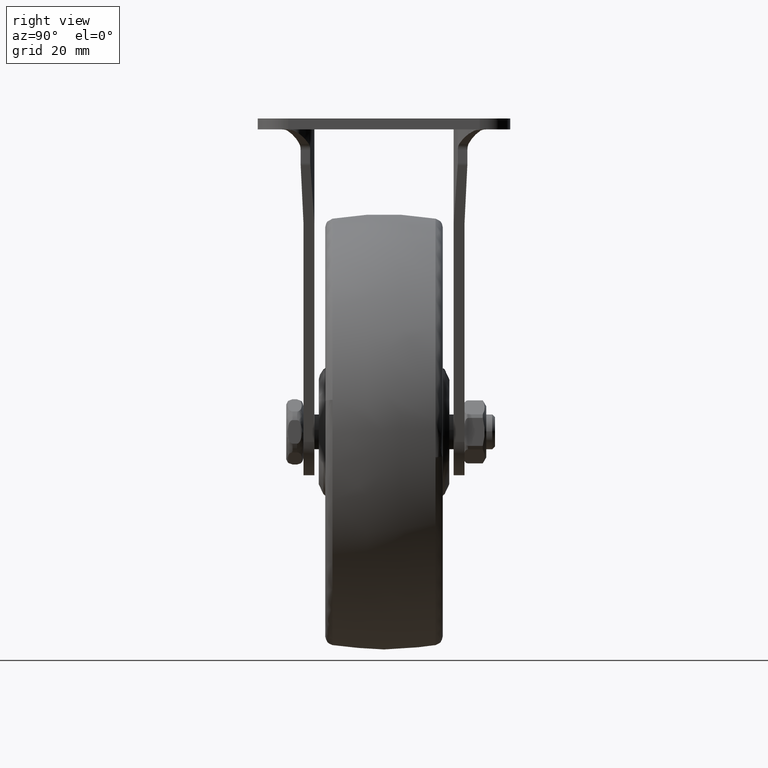
[diagram: clean part render]
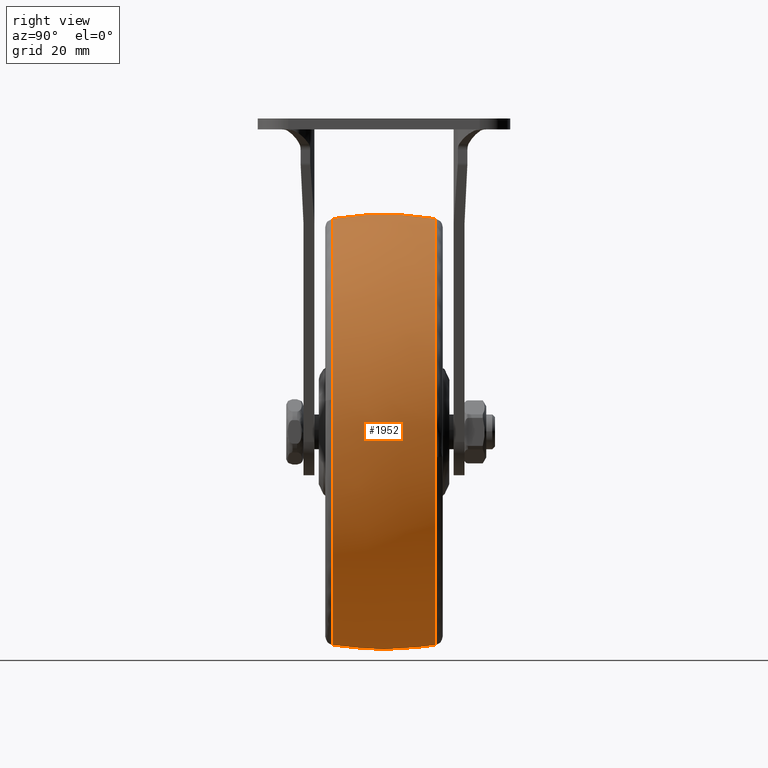
[diagram: same view with one face highlighted and labeled with its STEP entity id]
A machine part, right view. The second image highlights one B-rep face of the part: STEP entity #1952.
In plain terms, the highlighted face is a freeform B-spline surface patch.
Its self-contained STEP definition (entity closure, byte-faithful):
#1318=CARTESIAN_POINT('',(0.0,11.838203603458821,48.991714303276893));
#1319=VERTEX_POINT('',#1318);
#1333=CARTESIAN_POINT('',(48.646940888964309,11.838221536022481,-5.801945053575222));
#1334=VERTEX_POINT('',#1333);
#1335=CARTESIAN_POINT('',(48.646940888964309,11.838221536022479,-5.801945053575222));
#1336=CARTESIAN_POINT('',(48.991708058477606,11.838220596109956,-2.911214207508901));
#1337=CARTESIAN_POINT('',(48.991708018529650,11.838219648802690,0.000003625570847));
#1338=CARTESIAN_POINT('',(48.991707346261542,11.838203706950834,48.991714232092349));
#1339=CARTESIAN_POINT('',(0.0,11.838203603458821,48.991714303276893));
#1347=(BOUNDED_CURVE()B_SPLINE_CURVE(2,(#1335,#1336,#1337,#1338,#1339),.UNSPECIFIED.,.F.,.U.)B_SPLINE_CURVE_WITH_KNOTS((3,2,3),(0.229495605025618,0.250000000000000,0.500000000000000),.UNSPECIFIED.)CURVE()GEOMETRIC_REPRESENTATION_ITEM()RATIONAL_B_SPLINE_CURVE((0.955895731119439,0.975977607024523,1.0,0.707106781186548,1.0))REPRESENTATION_ITEM(''));
#1348=EDGE_CURVE('',#1334,#1319,#1347,.T.);
#1411=CARTESIAN_POINT('',(0.0,11.838235254025300,-48.991706749408102));
#1412=VERTEX_POINT('',#1411);
#1413=CARTESIAN_POINT('',(0.0,11.838235254025300,-48.991706749408102));
#1414=CARTESIAN_POINT('',(43.495850650208517,11.838235370593900,-48.991706829587073));
#1415=CARTESIAN_POINT('',(48.646940888964309,11.838221536022479,-5.801945053575222));
#1423=(BOUNDED_CURVE()B_SPLINE_CURVE(2,(#1413,#1414,#1415),.UNSPECIFIED.,.F.,.U.)B_SPLINE_CURVE_WITH_KNOTS((3,3),(0.0,0.229495605025618),.UNSPECIFIED.)CURVE()GEOMETRIC_REPRESENTATION_ITEM()RATIONAL_B_SPLINE_CURVE((1.0,0.731129174162024,0.955895731119439))REPRESENTATION_ITEM(''));
#1424=EDGE_CURVE('',#1412,#1334,#1423,.T.);
#1426=CARTESIAN_POINT('',(-48.664040279431163,11.838207804842760,5.656782072754959));
#1427=VERTEX_POINT('',#1426);
#1428=CARTESIAN_POINT('',(-48.664040279431170,11.838207804842767,5.656782072754959));
#1429=CARTESIAN_POINT('',(-48.991713361614877,11.838208512790150,2.837881768906301));
#1430=CARTESIAN_POINT('',(-48.991713165036387,11.838209307797291,0.000000745762402));
#1431=CARTESIAN_POINT('',(-48.991709771407216,11.838223032388560,-48.991706398126325));
#1432=CARTESIAN_POINT('',(0.0,11.838235254025300,-48.991706749408102));
#1440=(BOUNDED_CURVE()B_SPLINE_CURVE(2,(#1428,#1429,#1430,#1431,#1432),.UNSPECIFIED.,.F.,.U.)B_SPLINE_CURVE_WITH_KNOTS((3,2,3),(0.730000029126776,0.750000000000000,1.0),.UNSPECIFIED.)CURVE()GEOMETRIC_REPRESENTATION_ITEM()RATIONAL_B_SPLINE_CURVE((0.956886175519225,0.976568576619065,1.0,0.707106781186548,1.0))REPRESENTATION_ITEM(''));
#1441=EDGE_CURVE('',#1427,#1412,#1440,.T.);
#1492=CARTESIAN_POINT('',(12.903178560795300,-11.838233268654760,-47.261988427029607));
#1493=VERTEX_POINT('',#1492);
#1494=CARTESIAN_POINT('',(48.435739606254138,-11.838224634756500,7.359808502445123));
#1495=VERTEX_POINT('',#1494);
#1496=CARTESIAN_POINT('',(12.903178560795300,-11.838233268654761,-47.261988427029607));
#1497=CARTESIAN_POINT('',(48.991710322163286,-11.838231736516008,-37.409319121136342));
#1498=CARTESIAN_POINT('',(48.991709900268219,-11.838225802643230,0.000001324915156));
#1499=CARTESIAN_POINT('',(48.991709858530143,-11.838225215605362,3.700904295788137));
#1500=CARTESIAN_POINT('',(48.435739606254138,-11.838224634756500,7.359808502445124));
#1508=(BOUNDED_CURVE()B_SPLINE_CURVE(2,(#1496,#1497,#1498,#1499,#1500),.UNSPECIFIED.,.F.,.U.)B_SPLINE_CURVE_WITH_KNOTS((3,2,3),(0.044901926709365,0.250000000000000,0.275897579407143),.UNSPECIFIED.)CURVE()GEOMETRIC_REPRESENTATION_ITEM()RATIONAL_B_SPLINE_CURVE((0.913685083964325,0.759712660565874,1.0,0.969659098431859,0.945604244124881))REPRESENTATION_ITEM(''));
#1509=EDGE_CURVE('',#1493,#1495,#1508,.T.);
#1594=CARTESIAN_POINT('',(0.0,-11.838233890880700,-48.991711229283297));
#1595=VERTEX_POINT('',#1594);
#1596=CARTESIAN_POINT('',(0.0,-11.838233890880700,-48.991711229283297));
#1597=CARTESIAN_POINT('',(6.567527145614857,-11.838233718082767,-48.991710256361529));
#1598=CARTESIAN_POINT('',(12.903178560795300,-11.838233268654761,-47.261988427029607));
#1606=(BOUNDED_CURVE()B_SPLINE_CURVE(2,(#1596,#1597,#1598),.UNSPECIFIED.,.F.,.U.)B_SPLINE_CURVE_WITH_KNOTS((3,3),(0.0,0.044901926709365),.UNSPECIFIED.)CURVE()GEOMETRIC_REPRESENTATION_ITEM()RATIONAL_B_SPLINE_CURVE((1.0,0.947394120620674,0.913685083964325))REPRESENTATION_ITEM(''));
#1607=EDGE_CURVE('',#1595,#1493,#1606,.T.);
#1656=CARTESIAN_POINT('',(0.0,-11.838218220627891,48.991713918122400));
#1657=VERTEX_POINT('',#1656);
#1658=CARTESIAN_POINT('',(48.435739606254138,-11.838224634756500,7.359808502445124));
#1659=CARTESIAN_POINT('',(42.109775648996774,-11.838218098647115,48.991713811154284));
#1660=CARTESIAN_POINT('',(0.0,-11.838218220627891,48.991713918122400));
#1668=(BOUNDED_CURVE()B_SPLINE_CURVE(2,(#1658,#1659,#1660),.UNSPECIFIED.,.F.,.U.)B_SPLINE_CURVE_WITH_KNOTS((3,3),(0.275897579407143,0.500000000000000),.UNSPECIFIED.)CURVE()GEOMETRIC_REPRESENTATION_ITEM()RATIONAL_B_SPLINE_CURVE((0.945604244124881,0.737447682754688,1.0))REPRESENTATION_ITEM(''));
#1669=EDGE_CURVE('',#1495,#1657,#1668,.T.);
#1671=CARTESIAN_POINT('',(-48.664042563878027,-11.838206775501940,5.656782336412362));
#1672=VERTEX_POINT('',#1671);
#1686=CARTESIAN_POINT('',(-48.664042563878027,-11.838206775501941,5.656782336412362));
#1687=CARTESIAN_POINT('',(-48.991715731663426,-11.838207474840122,2.837881782215022));
#1688=CARTESIAN_POINT('',(-48.991715597809311,-11.838208260179350,0.000000507804113));
#1689=CARTESIAN_POINT('',(-48.991713287021248,-11.838221817868732,-48.991710990088713));
#1690=CARTESIAN_POINT('',(0.0,-11.838233890880700,-48.991711229283297));
#1698=(BOUNDED_CURVE()B_SPLINE_CURVE(2,(#1686,#1687,#1688,#1689,#1690),.UNSPECIFIED.,.F.,.U.)B_SPLINE_CURVE_WITH_KNOTS((3,2,3),(0.730000029133259,0.750000000000000,1.0),.UNSPECIFIED.)CURVE()GEOMETRIC_REPRESENTATION_ITEM()RATIONAL_B_SPLINE_CURVE((0.956886175531984,0.976568576626660,1.0,0.707106781186547,1.0))REPRESENTATION_ITEM(''));
#1699=EDGE_CURVE('',#1672,#1595,#1698,.T.);
#1860=CARTESIAN_POINT('',(-48.448963372802993,-13.037382184364999,5.631788449902660));
#1861=CARTESIAN_POINT('',(-49.665582081654186,-6.576224160731076,5.773210241318945));
#1862=CARTESIAN_POINT('',(-49.665582081654193,-3.673819E-015,5.773210241318947));
#1863=CARTESIAN_POINT('',(-49.665582081654186,6.576226811984325,5.773210241318947));
#1864=CARTESIAN_POINT('',(-48.448962400407424,13.037387348513853,5.631788336869777));
#1865=CARTESIAN_POINT('',(-48.775189318378487,-13.037382184365002,2.825342677118286));
#1866=CARTESIAN_POINT('',(-50.000000000000007,-6.576224160731078,2.896290836183077));
#1867=CARTESIAN_POINT('',(-50.0,-3.673819E-015,2.896290836183077));
#1868=CARTESIAN_POINT('',(-50.0,6.576226811984325,2.896290836183077));
#1869=CARTESIAN_POINT('',(-48.775188339435395,13.037387348513857,2.825342620412208));
#1870=CARTESIAN_POINT('',(-48.775189318378509,-13.037382184365001,0.0));
#1871=CARTESIAN_POINT('',(-50.000000000000007,-6.576224160731079,0.0));
#1872=CARTESIAN_POINT('',(-50.0,-3.673819E-015,0.0));
#1873=CARTESIAN_POINT('',(-50.0,6.576226811984324,0.0));
#1874=CARTESIAN_POINT('',(-48.775188339435388,13.037387348513862,0.0));
#1875=CARTESIAN_POINT('',(-48.775189318378501,-13.037382184365001,-48.775189318378501));
#1876=CARTESIAN_POINT('',(-50.000000000000007,-6.576224160731079,-50.000000000000007));
#1877=CARTESIAN_POINT('',(-50.0,-3.673819E-015,-50.0));
#1878=CARTESIAN_POINT('',(-50.0,6.576226811984325,-50.0));
#1879=CARTESIAN_POINT('',(-48.775188339435395,13.037387348513855,-48.775188339435395));
#1880=CARTESIAN_POINT('',(0.0,-13.037382184365001,-48.775189318378509));
#1881=CARTESIAN_POINT('',(0.0,-6.576224160731079,-50.000000000000007));
#1882=CARTESIAN_POINT('',(0.0,-3.673819E-015,-50.0));
#1883=CARTESIAN_POINT('',(0.0,6.576226811984324,-50.0));
#1884=CARTESIAN_POINT('',(0.0,13.037387348513862,-48.775188339435388));
#1885=CARTESIAN_POINT('',(48.775189318378501,-13.037382184365001,-48.775189318378501));
#1886=CARTESIAN_POINT('',(50.000000000000007,-6.576224160731079,-50.000000000000007));
#1887=CARTESIAN_POINT('',(50.0,-3.673819E-015,-50.0));
#1888=CARTESIAN_POINT('',(50.0,6.576226811984325,-50.0));
#1889=CARTESIAN_POINT('',(48.775188339435395,13.037387348513855,-48.775188339435395));
#1890=CARTESIAN_POINT('',(48.775189318378509,-13.037382184365001,0.0));
#1891=CARTESIAN_POINT('',(50.000000000000007,-6.576224160731079,0.0));
#1892=CARTESIAN_POINT('',(50.0,-3.673819E-015,0.0));
#1893=CARTESIAN_POINT('',(50.0,6.576226811984324,0.0));
#1894=CARTESIAN_POINT('',(48.775188339435388,13.037387348513862,0.0));
#1895=CARTESIAN_POINT('',(48.775189318378501,-13.037382184365001,48.775189318378501));
#1896=CARTESIAN_POINT('',(50.000000000000007,-6.576224160731079,50.000000000000007));
#1897=CARTESIAN_POINT('',(50.0,-3.673819E-015,50.0));
#1898=CARTESIAN_POINT('',(50.0,6.576226811984325,50.0));
#1899=CARTESIAN_POINT('',(48.775188339435395,13.037387348513855,48.775188339435395));
#1900=CARTESIAN_POINT('',(0.0,-13.037382184365001,48.775189318378509));
#1901=CARTESIAN_POINT('',(0.0,-6.576224160731079,50.000000000000007));
#1902=CARTESIAN_POINT('',(0.0,-3.673819E-015,50.0));
#1903=CARTESIAN_POINT('',(0.0,6.576226811984324,50.0));
#1904=CARTESIAN_POINT('',(0.0,13.037387348513862,48.775188339435388));
#1912=(BOUNDED_SURFACE()B_SPLINE_SURFACE(2,2,((#1860,#1865,#1870,#1875,#1880,#1885,#1890,#1895,#1900),(#1861,#1866,#1871,#1876,#1881,#1886,#1891,#1896,#1901),(#1862,#1867,#1872,#1877,#1882,#1887,#1892,#1897,#1902),(#1863,#1868,#1873,#1878,#1883,#1888,#1893,#1898,#1903),(#1864,#1869,#1874,#1879,#1884,#1889,#1894,#1899,#1904)),.UNSPECIFIED.,.F.,.F.,.U.)B_SPLINE_SURFACE_WITH_KNOTS((3,2,3),(3,2,2,2,3),(0.0,13.443626725657429,26.887258707431641),(0.0,6.627415615382595,89.470128090001595,172.312840564620590,255.155553039239610),.UNSPECIFIED.)GEOMETRIC_REPRESENTATION_ITEM()RATIONAL_B_SPLINE_SURFACE(((0.907871500364435,0.926545727707832,0.948776949852297,0.670886615074048,0.948776949852297,0.670886615074048,0.948776949852297,0.670886615074048,0.948776949852297),(0.927970599554410,0.947058250105299,0.969781642715315,0.685739175834229,0.969781642715315,0.685739175834229,0.969781642715315,0.685739175834229,0.969781642715315),(0.956886126402807,0.976568547383107,1.0,0.707106781186548,1.0,0.707106781186548,1.0,0.707106781186548,1.0),(0.927970588249173,0.947058238567522,0.969781630900705,0.685739167480038,0.969781630900705,0.685739167480038,0.969781630900705,0.685739167480038,0.969781630900705),(0.907871484647961,0.926545711668083,0.948776933427695,0.670886603460101,0.948776933427695,0.670886603460101,0.948776933427695,0.670886603460101,0.948776933427695)))REPRESENTATION_ITEM('')SURFACE());
#1913=ORIENTED_EDGE('',*,*,#1441,.T.);
#1914=ORIENTED_EDGE('',*,*,#1424,.T.);
#1915=ORIENTED_EDGE('',*,*,#1348,.T.);
#1916=CARTESIAN_POINT('',(0.0,-11.838218220627885,48.991713918122400));
#1917=CARTESIAN_POINT('',(0.0,-5.962048127119830,49.999999488166907));
#1918=CARTESIAN_POINT('',(0.0,-0.000000176931336,49.999998968858939));
#1919=CARTESIAN_POINT('',(0.0,5.962040484886755,49.999998449551612));
#1920=CARTESIAN_POINT('',(0.0,11.838203603458819,48.991714303276886));
#1928=(BOUNDED_CURVE()B_SPLINE_CURVE(2,(#1916,#1917,#1918,#1919,#1920),.UNSPECIFIED.,.F.,.U.)B_SPLINE_CURVE_WITH_KNOTS((3,2,3),(0.430697674666055,0.500000000000000,0.569302242942115),.UNSPECIFIED.)CURVE()GEOMETRIC_REPRESENTATION_ITEM()RATIONAL_B_SPLINE_CURVE((0.952668569573716,0.972526302549124,1.0,0.972526335211927,0.952668616790467))REPRESENTATION_ITEM(''));
#1929=EDGE_CURVE('',#1657,#1319,#1928,.T.);
#1930=ORIENTED_EDGE('',*,*,#1929,.F.);
#1931=ORIENTED_EDGE('',*,*,#1669,.F.);
#1932=ORIENTED_EDGE('',*,*,#1509,.F.);
#1933=ORIENTED_EDGE('',*,*,#1607,.F.);
#1934=ORIENTED_EDGE('',*,*,#1699,.F.);
#1935=CARTESIAN_POINT('',(-48.664042563878027,-11.838206775501947,5.656782336412363));
#1936=CARTESIAN_POINT('',(-49.665582405047701,-5.962042278804097,5.773203026407030));
#1937=CARTESIAN_POINT('',(-49.665581889159270,-0.000000176931114,5.773202966915355));
#1938=CARTESIAN_POINT('',(-49.665581373270783,5.962042631741246,5.773202907423674));
#1939=CARTESIAN_POINT('',(-48.664040279431163,11.838207804842760,5.656782072754959));
#1947=(BOUNDED_CURVE()B_SPLINE_CURVE(2,(#1935,#1936,#1937,#1938,#1939),.UNSPECIFIED.,.F.,.U.)B_SPLINE_CURVE_WITH_KNOTS((3,2,3),(0.430697740778695,0.500000000000000,0.569302267211362),.UNSPECIFIED.)CURVE()GEOMETRIC_REPRESENTATION_ITEM()RATIONAL_B_SPLINE_CURVE((0.911595365715705,0.930596943563768,0.956886118190660,0.930596940532814,0.911595361334212))REPRESENTATION_ITEM(''));
#1948=EDGE_CURVE('',#1672,#1427,#1947,.T.);
#1949=ORIENTED_EDGE('',*,*,#1948,.T.);
#1950=EDGE_LOOP('',(#1913,#1914,#1915,#1930,#1931,#1932,#1933,#1934,#1949));
#1951=FACE_OUTER_BOUND('',#1950,.T.);
#1952=ADVANCED_FACE('',(#1951),#1912,.T.);